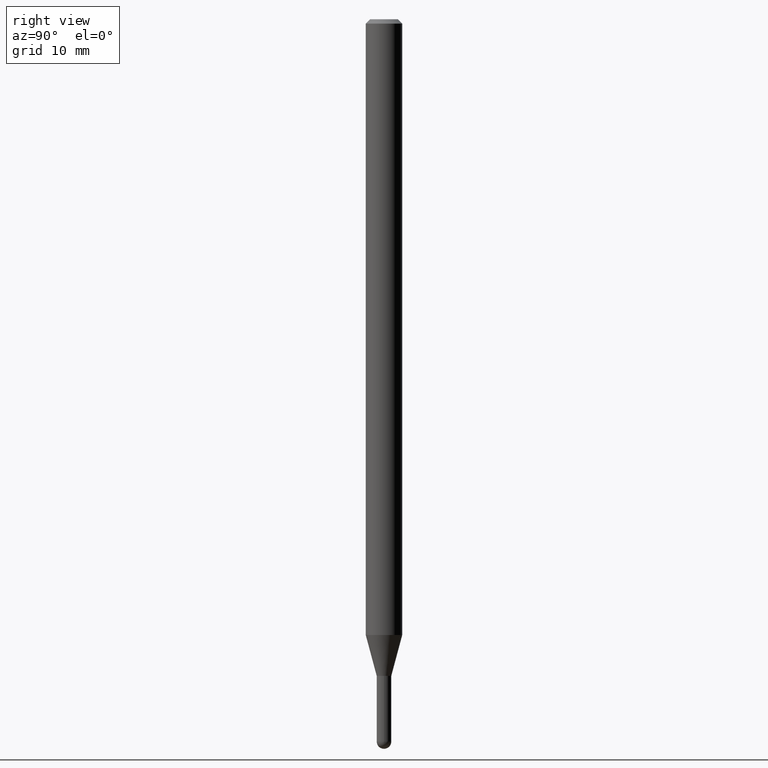
[diagram: clean part render]
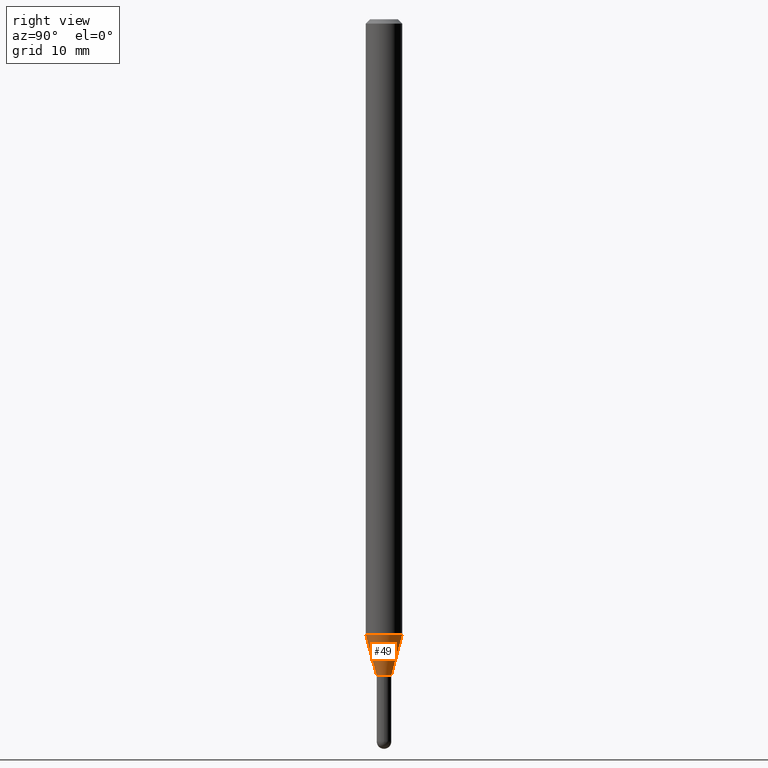
[diagram: same view with one face highlighted and labeled with its STEP entity id]
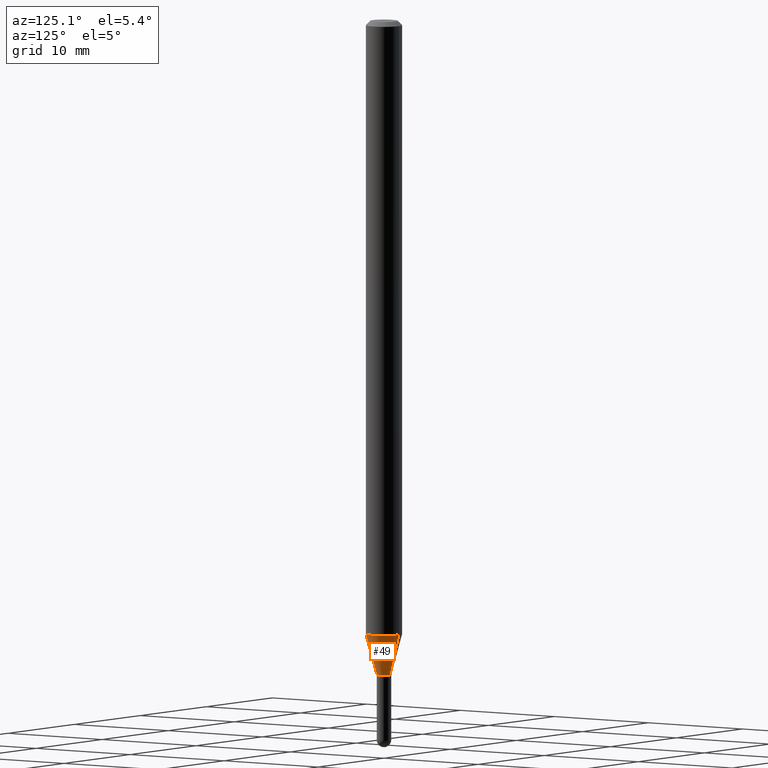
[diagram: same view with one face highlighted and labeled with its STEP entity id]
A machine part, right view. The second image highlights one B-rep face of the part: STEP entity #49.
A second angle (auxiliary view) of the same face is appended — the face is thin or edge-on in the first view.
In plain terms, the highlighted conical surface has half-angle 15 deg.
Its self-contained STEP definition (entity closure, byte-faithful):
#2 = VECTOR ( 'NONE', #280, 39.37007874015748143 ) ;
#5 = AXIS2_PLACEMENT_3D ( 'NONE', #183, #260, #253 ) ;
#7 = LINE ( 'NONE', #153, #492 ) ;
#37 = CARTESIAN_POINT ( 'NONE',  ( 1.776356839400814845E-16, 0.02499999999999234779, -2.250000000000000000 ) ) ;
#46 = VERTEX_POINT ( 'NONE', #457 ) ;
#49 = ADVANCED_FACE ( 'NONE', ( #175 ), #135, .T. ) ;
#78 = VERTEX_POINT ( 'NONE', #179 ) ;
#135 = CONICAL_SURFACE ( 'NONE', #5, 0.02500000000000020262, 0.2617993877991574569 ) ;
#153 = CARTESIAN_POINT ( 'NONE',  ( -1.745740669421030499E-16, -0.02500000000000805744, -2.250000000000000000 ) ) ;
#154 = CARTESIAN_POINT ( 'NONE',  ( 5.159987491556965604E-29, -7.367292793494006294E-15, -2.110048094716172606 ) ) ;
#175 = FACE_OUTER_BOUND ( 'NONE', #355, .T. ) ;
#179 = CARTESIAN_POINT ( 'NONE',  ( -1.745740669421030499E-16, -0.02500000000000805744, -2.250000000000000000 ) ) ;
#183 = CARTESIAN_POINT ( 'NONE',  ( 5.502230913634628262E-29, -7.855938841806944106E-15, -2.250000000000000000 ) ) ;
#235 = LINE ( 'NONE', #37, #2 ) ;
#238 = DIRECTION ( 'NONE',  ( -6.982962677686266711E-15, -1.000000000000000000, 0.000000000000000000 ) ) ;
#239 = ORIENTED_EDGE ( 'NONE', *, *, #364, .T. ) ;
#253 = DIRECTION ( 'NONE',  ( -6.982962677686266711E-15, -1.000000000000000000, 0.000000000000000000 ) ) ;
#260 = DIRECTION ( 'NONE',  ( -2.445435961615390245E-29, 3.491528374136419427E-15, 1.000000000000000000 ) ) ;
#269 = DIRECTION ( 'NONE',  ( -6.982962677686265922E-15, -1.000000000000000000, 4.370956789862821150E-15 ) ) ;
#280 = DIRECTION ( 'NONE',  ( 1.839019923739649619E-15, 0.2588190451025318972, 0.9659258262890653146 ) ) ;
#283 = VERTEX_POINT ( 'NONE', #507 ) ;
#286 = AXIS2_PLACEMENT_3D ( 'NONE', #362, #472, #238 ) ;
#305 = CIRCLE ( 'NONE', #286, 0.02500000000000020262 ) ;
#307 = CIRCLE ( 'NONE', #349, 0.06250000000000000000 ) ;
#316 = EDGE_CURVE ( 'NONE', #46, #375, #307, .T. ) ;
#349 = AXIS2_PLACEMENT_3D ( 'NONE', #154, #467, #269 ) ;
#353 = ORIENTED_EDGE ( 'NONE', *, *, #316, .F. ) ;
#355 = EDGE_LOOP ( 'NONE', ( #434, #239, #353, #488 ) ) ;
#362 = CARTESIAN_POINT ( 'NONE',  ( 5.502230913634628262E-29, -7.855938841806944106E-15, -2.250000000000000000 ) ) ;
#364 = EDGE_CURVE ( 'NONE', #283, #375, #235, .T. ) ;
#375 = VERTEX_POINT ( 'NONE', #498 ) ;
#431 = DIRECTION ( 'NONE',  ( -1.807323732225378654E-15, -0.2588190451025251249, 0.9659258262890670910 ) ) ;
#434 = ORIENTED_EDGE ( 'NONE', *, *, #448, .T. ) ;
#448 = EDGE_CURVE ( 'NONE', #78, #283, #305, .T. ) ;
#457 = CARTESIAN_POINT ( 'NONE',  ( -4.364351673553401962E-16, -0.06250000000000738298, -2.110048094716172162 ) ) ;
#467 = DIRECTION ( 'NONE',  ( -2.445435961615390245E-29, 3.491528374136419427E-15, 1.000000000000000000 ) ) ;
#472 = DIRECTION ( 'NONE',  ( -2.445435961615390245E-29, 3.491528374136419427E-15, 1.000000000000000000 ) ) ;
#475 = EDGE_CURVE ( 'NONE', #78, #46, #7, .T. ) ;
#488 = ORIENTED_EDGE ( 'NONE', *, *, #475, .F. ) ;
#492 = VECTOR ( 'NONE', #431, 39.37007874015748854 ) ;
#498 = CARTESIAN_POINT ( 'NONE',  ( 4.440892098501139907E-16, 0.06249999999999261702, -2.110048094716172606 ) ) ;
#507 = CARTESIAN_POINT ( 'NONE',  ( 3.108624468950978979E-16, 0.02499999999999235473, -2.250000000000000000 ) ) ;